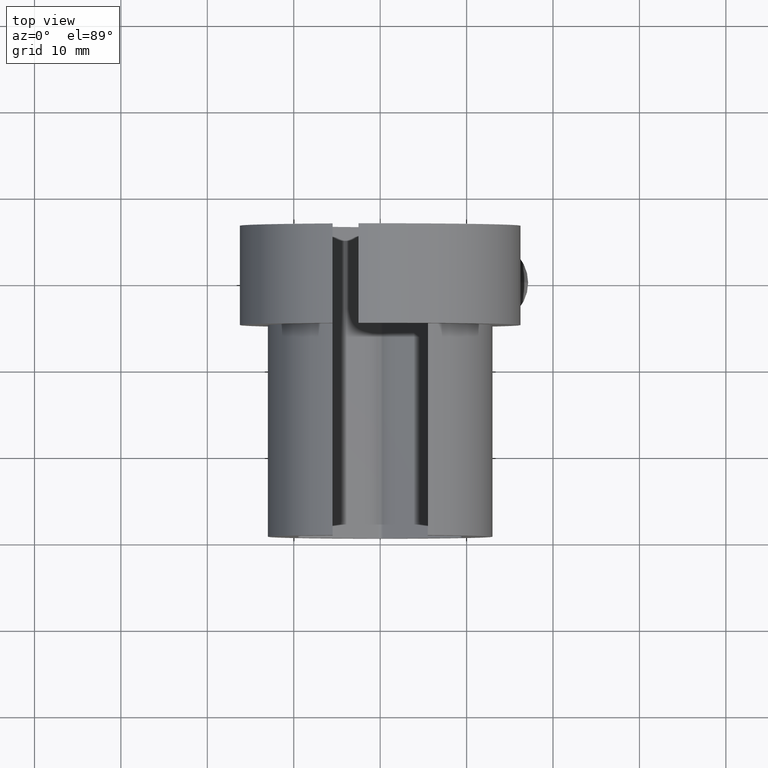
[diagram: clean part render]
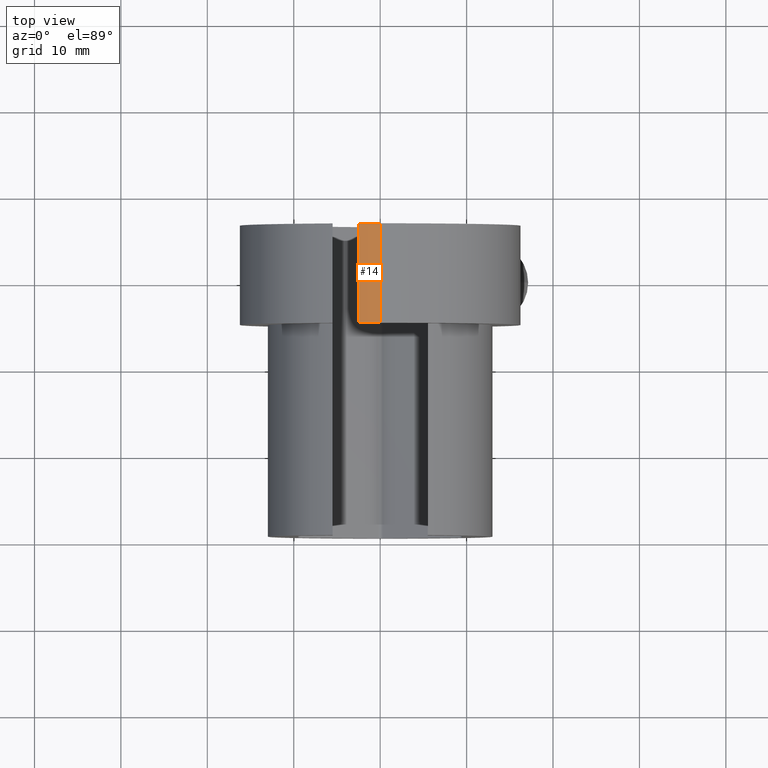
[diagram: same view with one face highlighted and labeled with its STEP entity id]
A machine part, top view. The second image highlights one B-rep face of the part: STEP entity #14.
In plain terms, the highlighted cylindrical surface (partial cylindrical patch) has radius 16.24 mm, axis along (0, 1, 0).
Its self-contained STEP definition (entity closure, byte-faithful):
#8 = VERTEX_POINT ( 'NONE', #450 ) ;
#10 = EDGE_CURVE ( 'NONE', #13, #8, #449, .T. ) ;
#13 = VERTEX_POINT ( 'NONE', #440 ) ;
#14 = ADVANCED_FACE ( 'NONE', ( #439 ), #437, .T. ) ;
#15 = EDGE_LOOP ( 'NONE', ( #98, #103, #99, #101 ) ) ;
#96 = VERTEX_POINT ( 'NONE', #649 ) ;
#97 = EDGE_CURVE ( 'NONE', #96, #13, #647, .T. ) ;
#98 = ORIENTED_EDGE ( 'NONE', *, *, #97, .T. ) ;
#99 = ORIENTED_EDGE ( 'NONE', *, *, #100, .F. ) ;
#100 = EDGE_CURVE ( 'NONE', #104, #8, #660, .T. ) ;
#101 = ORIENTED_EDGE ( 'NONE', *, *, #105, .F. ) ;
#103 = ORIENTED_EDGE ( 'NONE', *, *, #10, .T. ) ;
#104 = VERTEX_POINT ( 'NONE', #669 ) ;
#105 = EDGE_CURVE ( 'NONE', #96, #104, #766, .T. ) ;
#434 = DIRECTION ( 'NONE',  ( 0.0000000000000000000, 0.0000000000000000000, 1.000000000000000000 ) ) ;
#435 = DIRECTION ( 'NONE',  ( 0.0000000000000000000, 1.000000000000000000, 0.0000000000000000000 ) ) ;
#436 = AXIS2_PLACEMENT_3D ( 'NONE', #438, #435, #434 ) ;
#437 = CYLINDRICAL_SURFACE ( 'NONE', #436, 16.24000000000000600 ) ;
#438 = CARTESIAN_POINT ( 'NONE',  ( 0.0000000000000000000, 24.49899999999999500, 0.0000000000000000000 ) ) ;
#439 = FACE_OUTER_BOUND ( 'NONE', #15, .T. ) ;
#440 = CARTESIAN_POINT ( 'NONE',  ( 0.0000000000000000000, 24.49899999999999500, 16.24000000000000600 ) ) ;
#446 = DIRECTION ( 'NONE',  ( 0.0000000000000000000, 1.000000000000000000, 0.0000000000000000000 ) ) ;
#447 = VECTOR ( 'NONE', #446, 1000.000000000000000 ) ;
#448 = CARTESIAN_POINT ( 'NONE',  ( 0.0000000000000000000, 24.49899999999999500, 16.24000000000000600 ) ) ;
#449 = LINE ( 'NONE', #448, #447 ) ;
#450 = CARTESIAN_POINT ( 'NONE',  ( 0.0000000000000000000, 35.99899999999999500, 16.24000000000000600 ) ) ;
#647 = CIRCLE ( 'NONE', #664, 16.24000000000000600 ) ;
#648 = CARTESIAN_POINT ( 'NONE',  ( 0.0000000000000000000, 35.99899999999999500, 0.0000000000000000000 ) ) ;
#649 = CARTESIAN_POINT ( 'NONE',  ( -2.500000000000000000, 24.49899999999999500, 16.04642016151889500 ) ) ;
#657 = DIRECTION ( 'NONE',  ( 0.0000000000000000000, 0.0000000000000000000, 1.000000000000000000 ) ) ;
#658 = DIRECTION ( 'NONE',  ( 0.0000000000000000000, 1.000000000000000000, 0.0000000000000000000 ) ) ;
#659 = AXIS2_PLACEMENT_3D ( 'NONE', #648, #658, #657 ) ;
#660 = CIRCLE ( 'NONE', #659, 16.24000000000000600 ) ;
#661 = DIRECTION ( 'NONE',  ( 0.0000000000000000000, 0.0000000000000000000, 1.000000000000000000 ) ) ;
#662 = DIRECTION ( 'NONE',  ( 0.0000000000000000000, 1.000000000000000000, 0.0000000000000000000 ) ) ;
#663 = CARTESIAN_POINT ( 'NONE',  ( 0.0000000000000000000, 24.49899999999999500, 0.0000000000000000000 ) ) ;
#664 = AXIS2_PLACEMENT_3D ( 'NONE', #663, #662, #661 ) ;
#669 = CARTESIAN_POINT ( 'NONE',  ( -2.500000000000000000, 35.99899999999999500, 16.04642016151889500 ) ) ;
#708 = DIRECTION ( 'NONE',  ( 0.0000000000000000000, 1.000000000000000000, 0.0000000000000000000 ) ) ;
#709 = VECTOR ( 'NONE', #708, 1000.000000000000000 ) ;
#749 = CARTESIAN_POINT ( 'NONE',  ( -2.500000000000000000, 24.49899999999999500, 16.04642016151889500 ) ) ;
#766 = LINE ( 'NONE', #749, #709 ) ;